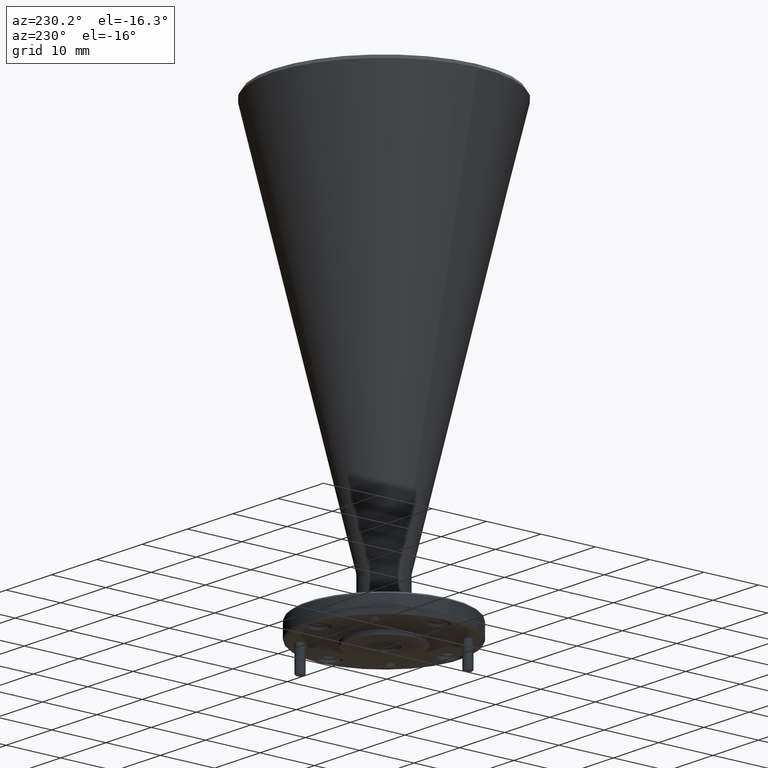
[diagram: clean part render]
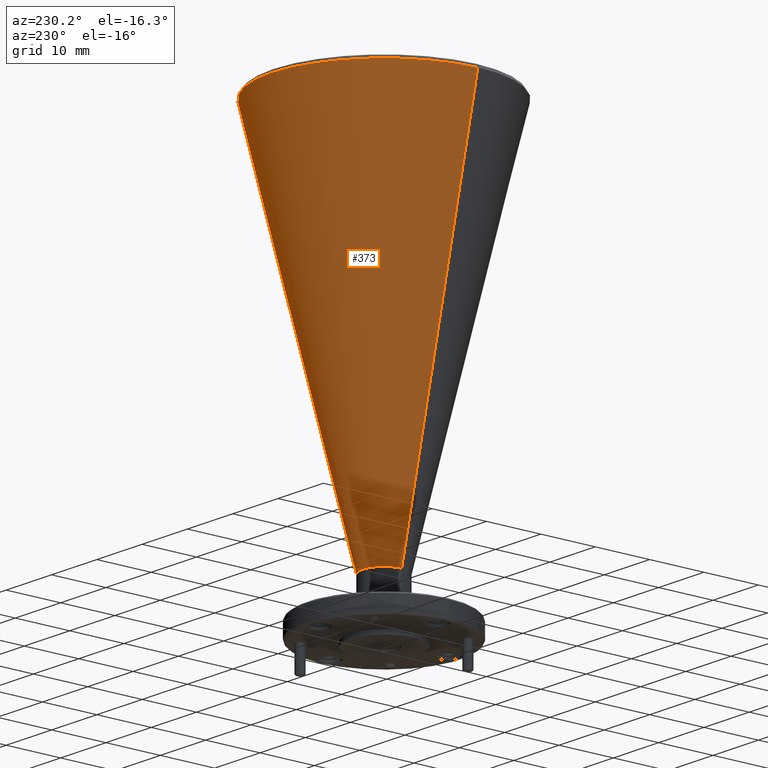
[diagram: same view with one face highlighted and labeled with its STEP entity id]
A machine part, auxiliary view. The second image highlights one B-rep face of the part: STEP entity #373.
In plain terms, the highlighted conical surface has half-angle 13.5 deg.
Its self-contained STEP definition (entity closure, byte-faithful):
#9 = CARTESIAN_POINT ( 'NONE',  ( 0.6288216317397034000, 1.133992482487602400, 0.4218811774268598800 ) ) ;
#17 = CARTESIAN_POINT ( 'NONE',  ( 1.289985497643306100, 1.133992482487602400, 3.175826876067312300 ) ) ;
#26 = FACE_OUTER_BOUND ( 'NONE', #740, .T. ) ;
#127 = DIRECTION ( 'NONE',  ( -0.0000000000000000000, -0.0000000000000000000, 1.000000000000000000 ) ) ;
#142 = VERTEX_POINT ( 'NONE', #997 ) ;
#178 = VECTOR ( 'NONE', #1915, 39.37007874015748100 ) ;
#314 = CARTESIAN_POINT ( 'NONE',  ( 0.3208216317397033500, 1.133992482487602400, 0.4218811774268598800 ) ) ;
#319 = ORIENTED_EDGE ( 'NONE', *, *, #1777, .T. ) ;
#373 = ADVANCED_FACE ( 'NONE', ( #26 ), #1831, .T. ) ;
#403 = DIRECTION ( 'NONE',  ( 0.0000000000000000000, 0.0000000000000000000, -1.000000000000000000 ) ) ;
#446 = VERTEX_POINT ( 'NONE', #1148 ) ;
#566 = ORIENTED_EDGE ( 'NONE', *, *, #1653, .T. ) ;
#598 = CARTESIAN_POINT ( 'NONE',  ( 0.4748216317397033800, 1.133992482487602400, 0.4218811774268598800 ) ) ;
#740 = EDGE_LOOP ( 'NONE', ( #566, #1528, #319, #1137 ) ) ;
#793 = DIRECTION ( 'NONE',  ( -0.2334453638558986200, 2.858881176219154500E-017, 0.9723699203976782200 ) ) ;
#856 = LINE ( 'NONE', #9, #178 ) ;
#914 = DIRECTION ( 'NONE',  ( 1.000000000000000000, 0.0000000000000000000, 0.0000000000000000000 ) ) ;
#971 = VECTOR ( 'NONE', #793, 39.37007874015748100 ) ;
#984 = AXIS2_PLACEMENT_3D ( 'NONE', #1330, #1823, #1666 ) ;
#997 = CARTESIAN_POINT ( 'NONE',  ( 0.3208216317397033500, 1.133992482487602400, 0.4218811774268598800 ) ) ;
#1027 = DIRECTION ( 'NONE',  ( -1.000000000000000000, 0.0000000000000000000, 0.0000000000000000000 ) ) ;
#1137 = ORIENTED_EDGE ( 'NONE', *, *, #1291, .F. ) ;
#1148 = CARTESIAN_POINT ( 'NONE',  ( 0.6288216317397034000, 1.133992482487602400, 0.4218811774268598800 ) ) ;
#1281 = CARTESIAN_POINT ( 'NONE',  ( -0.3403422341638994200, 1.133992482487602600, 3.175826876067312300 ) ) ;
#1287 = VERTEX_POINT ( 'NONE', #1281 ) ;
#1291 = EDGE_CURVE ( 'NONE', #446, #1784, #856, .T. ) ;
#1330 = CARTESIAN_POINT ( 'NONE',  ( 0.4748216317397033800, 1.133992482487602400, 0.4218811774268598800 ) ) ;
#1354 = CARTESIAN_POINT ( 'NONE',  ( 0.4748216317397033800, 1.133992482487602400, 3.175826876067312300 ) ) ;
#1528 = ORIENTED_EDGE ( 'NONE', *, *, #2088, .T. ) ;
#1653 = EDGE_CURVE ( 'NONE', #446, #142, #1875, .T. ) ;
#1666 = DIRECTION ( 'NONE',  ( 1.000000000000000000, 0.0000000000000000000, 0.0000000000000000000 ) ) ;
#1676 = LINE ( 'NONE', #314, #971 ) ;
#1701 = CIRCLE ( 'NONE', #1903, 0.8151638659036026800 ) ;
#1777 = EDGE_CURVE ( 'NONE', #1287, #1784, #1701, .T. ) ;
#1784 = VERTEX_POINT ( 'NONE', #17 ) ;
#1823 = DIRECTION ( 'NONE',  ( -0.0000000000000000000, -0.0000000000000000000, 1.000000000000000000 ) ) ;
#1831 = CONICAL_SURFACE ( 'NONE', #1953, 0.1540000000000000500, 0.2356194490192275200 ) ;
#1875 = CIRCLE ( 'NONE', #984, 0.1540000000000000500 ) ;
#1903 = AXIS2_PLACEMENT_3D ( 'NONE', #1354, #403, #1027 ) ;
#1915 = DIRECTION ( 'NONE',  ( 0.2334453638558986200, 0.0000000000000000000, 0.9723699203976782200 ) ) ;
#1953 = AXIS2_PLACEMENT_3D ( 'NONE', #598, #127, #914 ) ;
#2088 = EDGE_CURVE ( 'NONE', #142, #1287, #1676, .T. ) ;